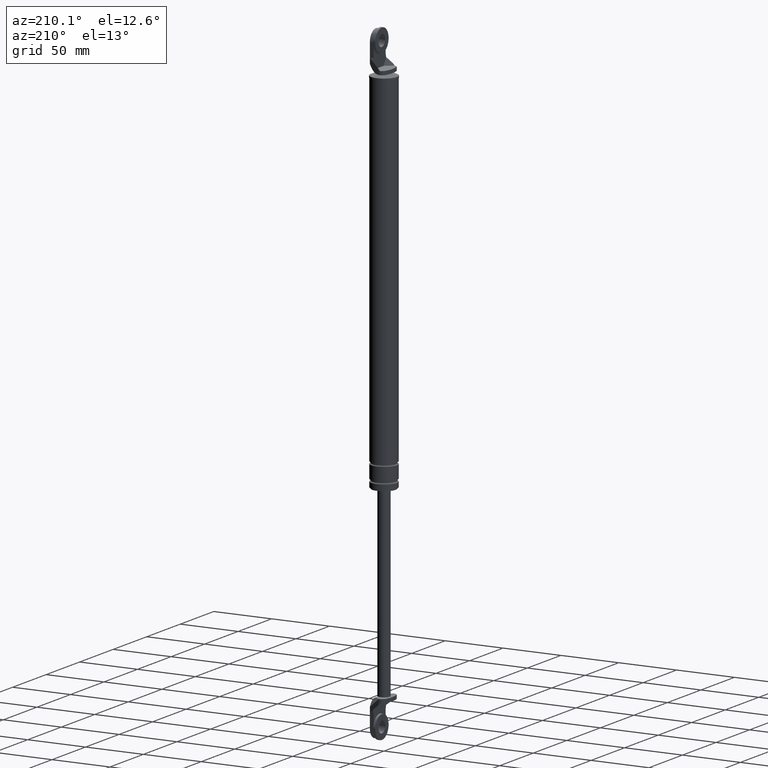
[diagram: clean part render]
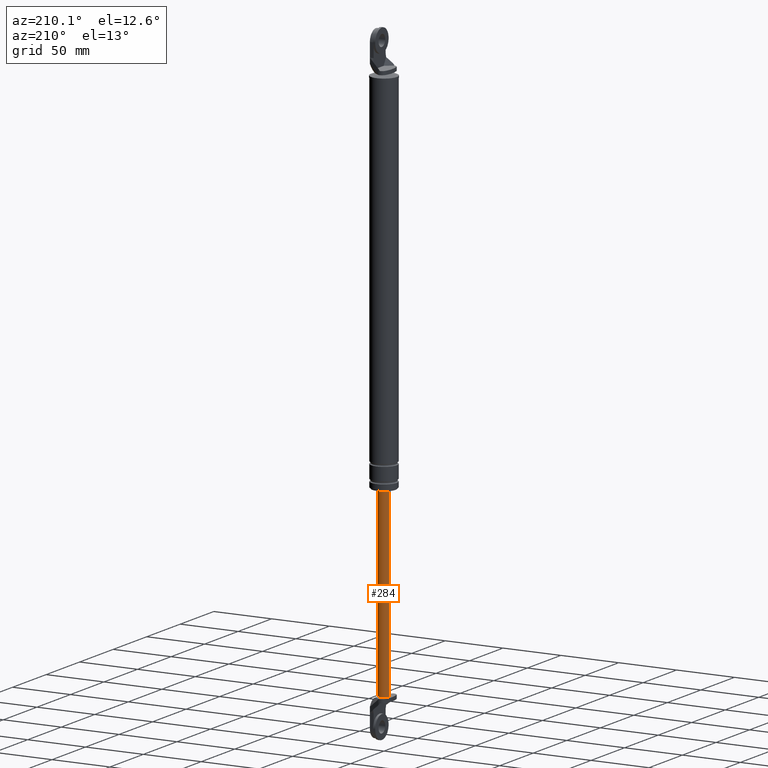
[diagram: same view with one face highlighted and labeled with its STEP entity id]
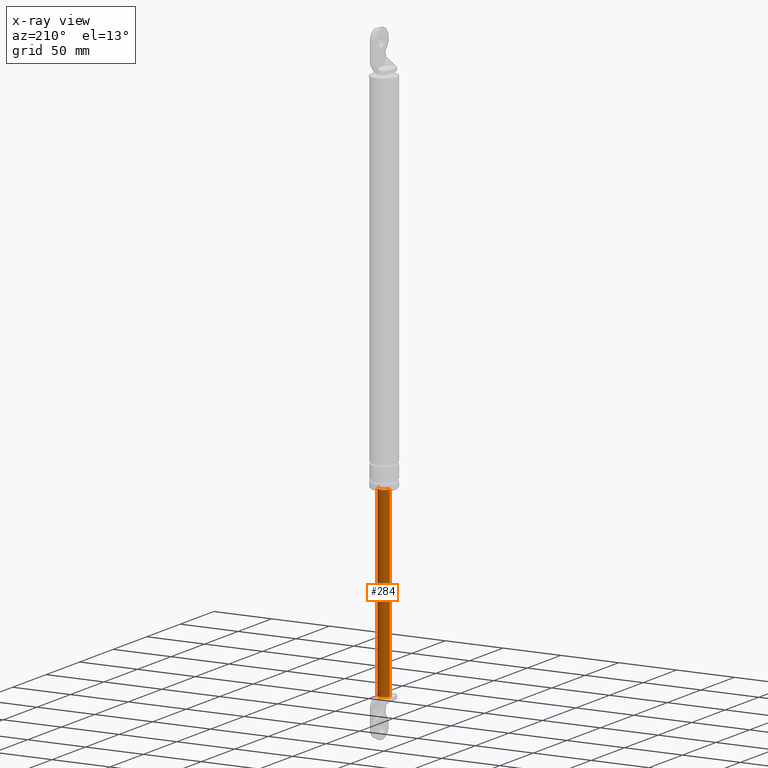
[diagram: x-ray of the same camera — body ghosted, the highlighted face saturated]
A machine part, auxiliary view. The second image highlights one B-rep face of the part: STEP entity #284.
The next image is the same camera in x-ray: the body ghosted, the highlighted face saturated — about 0% of this face is hidden behind the body in this view.
In plain terms, the highlighted cylindrical surface (edge-blend (fillet) strip) has radius 5 mm, axis along (0, 0, 1).
Its self-contained STEP definition (entity closure, byte-faithful):
#284=ADVANCED_FACE('',(#1097),#1096,.T.);
#1096=CYLINDRICAL_SURFACE('',#1755,5.00000000000E+000);
#1097=FACE_OUTER_BOUND('',#1756,.T.);
#1752=CARTESIAN_POINT('',(0.00000000000E+000,3.58204186421E-014,0.00000000000E+000));
#1753=DIRECTION('',(-0.00000000000E+000,-0.00000000000E+000,1.00000000000E+000));
#1754=DIRECTION('',(1.00000000000E+000,0.00000000000E+000,0.00000000000E+000));
#1755=AXIS2_PLACEMENT_3D('',#1752,#1753,#1754);
#1756=EDGE_LOOP('',(#2148,#2149,#2150,#2151,#2152));
#2148=ORIENTED_EDGE('',*,*,#2348,.T.);
#2149=ORIENTED_EDGE('',*,*,#2354,.F.);
#2150=ORIENTED_EDGE('',*,*,#2350,.F.);
#2151=ORIENTED_EDGE('',*,*,#2337,.T.);
#2152=ORIENTED_EDGE('',*,*,#2355,.T.);
#2337=EDGE_CURVE('',#3206,#3542,#3550,.T.);
#2348=EDGE_CURVE('',#3614,#3613,#3621,.T.);
#2350=EDGE_CURVE('',#3206,#3633,#3634,.T.);
#2354=EDGE_CURVE('',#3633,#3613,#3658,.T.);
#2355=EDGE_CURVE('',#3542,#3614,#3664,.T.);
#3206=VERTEX_POINT('',#4192);
#3542=VERTEX_POINT('',#4391);
#3550=CIRCLE('',#4400,5.00000000000E+000);
#3613=VERTEX_POINT('',#4436);
#3614=VERTEX_POINT('',#4437);
#3621=CIRCLE('',#4445,5.00000000000E+000);
#3633=VERTEX_POINT('',#4449);
#3634=CIRCLE('',#4453,5.00000000000E+000);
#3658=(BOUNDED_CURVE() B_SPLINE_CURVE(1,(#4462,#4463),.UNSPECIFIED.,.F.,.F.) B_SPLINE_CURVE_WITH_KNOTS((2,2),(5.58659216388E-002,9.44134078355E-001),.UNSPECIFIED.) CURVE() GEOMETRIC_REPRESENTATION_ITEM() RATIONAL_B_SPLINE_CURVE((1.00000000000E+000,1.00000000000E+000)) REPRESENTATION_ITEM('') );
#3664=(BOUNDED_CURVE() B_SPLINE_CURVE(1,(#4464,#4465),.UNSPECIFIED.,.F.,.F.) B_SPLINE_CURVE_WITH_KNOTS((2,2),(5.58659217877E-002,9.44134078212E-001),.UNSPECIFIED.) CURVE() GEOMETRIC_REPRESENTATION_ITEM() RATIONAL_B_SPLINE_CURVE((7.50000000000E-001,7.50000000000E-001)) REPRESENTATION_ITEM('') );
#4192=CARTESIAN_POINT('',(2.00000000000E+000,4.58257569496E+000,-3.89000015000E+002));
#4391=CARTESIAN_POINT('',(-5.00000000000E+000,-4.03108028563E-008,-3.89000015000E+002));
#4397=CARTESIAN_POINT('',(0.00000000000E+000,3.58204186421E-014,-3.89000015000E+002));
#4398=DIRECTION('',(0.00000000000E+000,-0.00000000000E+000,1.00000000000E+000));
#4399=DIRECTION('',(1.00000000000E+000,-0.00000000000E+000,-0.00000000000E+000));
#4400=AXIS2_PLACEMENT_3D('',#4397,#4398,#4399);
#4436=CARTESIAN_POINT('',(5.00000000000E+000,3.58231962612E-014,-2.30000015000E+002));
#4437=CARTESIAN_POINT('',(-5.00000000000E+000,3.58204186421E-014,-2.30000015000E+002));
#4442=CARTESIAN_POINT('',(0.00000000000E+000,3.58204186421E-014,-2.30000015000E+002));
#4443=DIRECTION('',(-0.00000000000E+000,0.00000000000E+000,-1.00000000000E+000));
#4444=DIRECTION('',(-1.00000000000E+000,-1.22460635382E-016,0.00000000000E+000));
#4445=AXIS2_PLACEMENT_3D('',#4442,#4443,#4444);
#4449=CARTESIAN_POINT('',(5.00000000000E+000,1.01515834226E-011,-3.89000015000E+002));
#4450=CARTESIAN_POINT('',(0.00000000000E+000,3.58204186421E-014,-3.89000015000E+002));
#4451=DIRECTION('',(0.00000000000E+000,0.00000000000E+000,-1.00000000000E+000));
#4452=DIRECTION('',(4.00000000000E-001,9.16515138991E-001,0.00000000000E+000));
#4453=AXIS2_PLACEMENT_3D('',#4450,#4451,#4452);
#4462=CARTESIAN_POINT('',(5.00000000000E+000,3.58204186421E-014,-3.89000015027E+002));
#4463=CARTESIAN_POINT('',(5.00000000000E+000,3.58204186421E-014,-2.30000014975E+002));
#4464=CARTESIAN_POINT('',(-5.00000000000E+000,3.55271367880E-014,-3.89000015000E+002));
#4465=CARTESIAN_POINT('',(-5.00000000000E+000,3.55271367880E-014,-2.30000015000E+002));